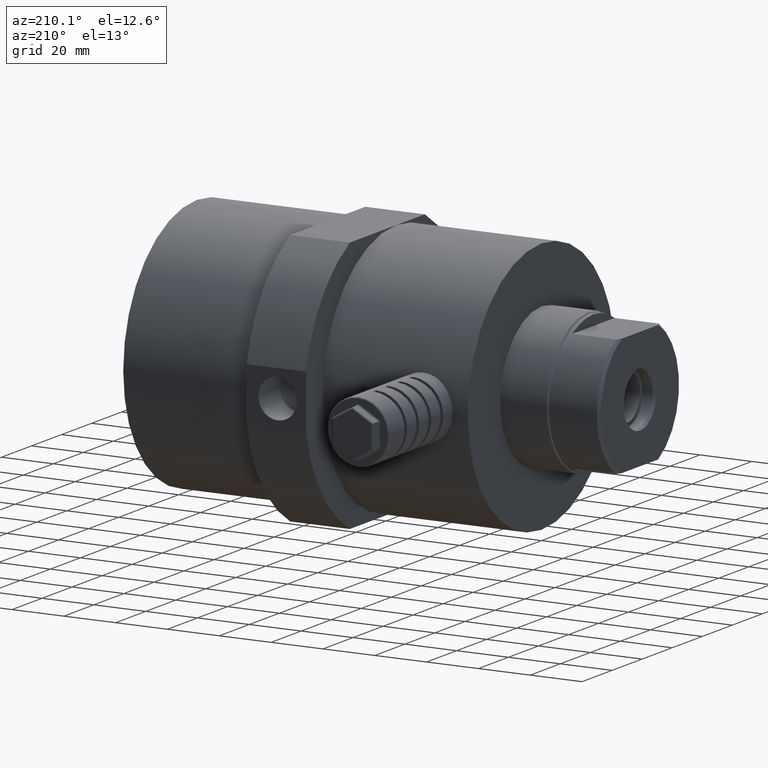
[diagram: clean part render]
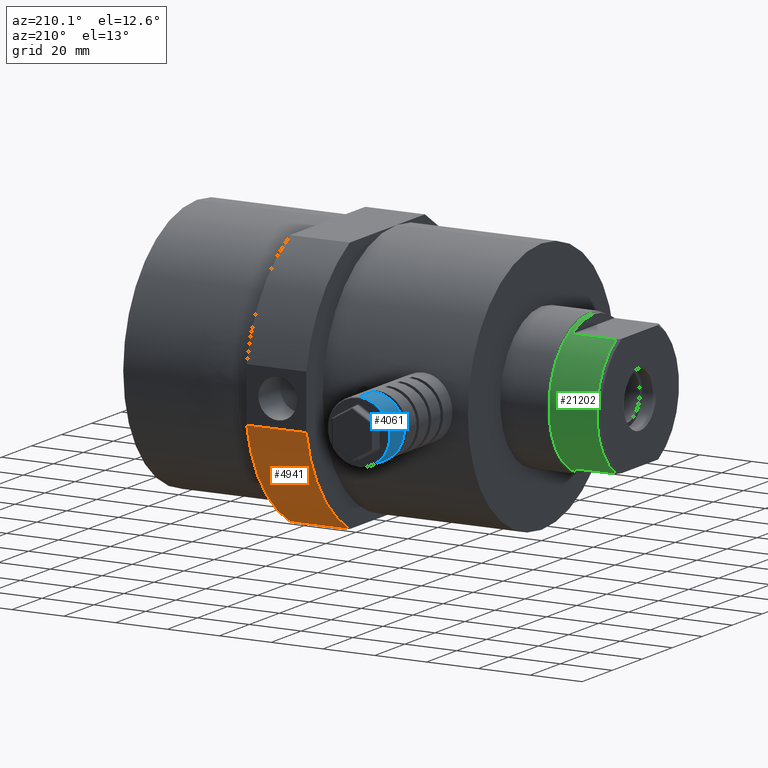
[diagram: same view with three faces highlighted in distinct colors, each labeled with its STEP entity id]
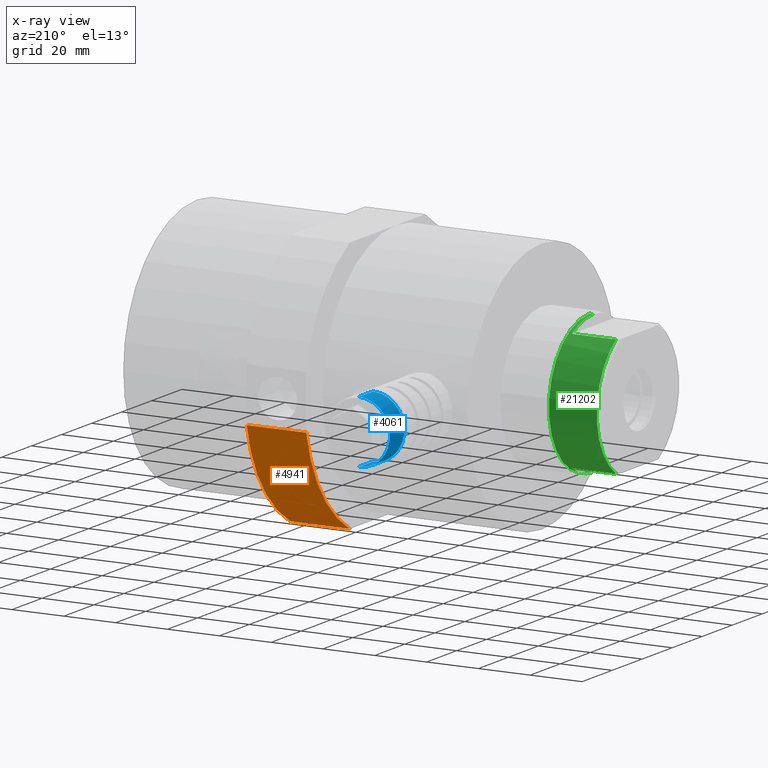
[diagram: x-ray of the same camera — body ghosted, the three highlighted faces saturated]
A machine part, auxiliary view with three faces highlighted in distinct colors.
The next image is the same camera in x-ray (body ghosted, the three faces saturated) — at least one of them is partly hidden behind the body in this view.
Their STEP definitions:

[orange] entity #4941 — the highlighted cylindrical surface (partial cylindrical patch) has radius 55 mm, axis along (-1, 0, 0).
#126 = CARTESIAN_POINT ( 'NONE',  ( 56.00000000000000000, 60.00000000000000000, -10.44030650891056000 ) ) ;
#408 = ORIENTED_EDGE ( 'NONE', *, *, #3626, .F. ) ;
#638 = CARTESIAN_POINT ( 'NONE',  ( 79.00000000000000000, 30.97999199359360000, -49.00000000000000000 ) ) ;
#736 = CARTESIAN_POINT ( 'NONE',  ( 0.0000000000000000000, 60.00000000000000000, -10.44030650891056000 ) ) ;
#1926 = CIRCLE ( 'NONE', #14476, 55.00000000000000000 ) ;
#1981 = DIRECTION ( 'NONE',  ( 0.0000000000000000000, 0.0000000000000000000, -1.000000000000000000 ) ) ;
#2153 = FACE_OUTER_BOUND ( 'NONE', #3464, .T. ) ;
#3439 = VECTOR ( 'NONE', #21181, 1000.000000000000000 ) ;
#3464 = EDGE_LOOP ( 'NONE', ( #5284, #5040, #408, #7193 ) ) ;
#3626 = EDGE_CURVE ( 'NONE', #6372, #9669, #15256, .T. ) ;
#3713 = LINE ( 'NONE', #736, #3439 ) ;
#4941 = ADVANCED_FACE ( 'NONE', ( #2153 ), #21964, .T. ) ;
#5040 = ORIENTED_EDGE ( 'NONE', *, *, #17989, .T. ) ;
#5284 = ORIENTED_EDGE ( 'NONE', *, *, #10808, .F. ) ;
#6360 = DIRECTION ( 'NONE',  ( 0.0000000000000000000, 0.0000000000000000000, 1.000000000000000000 ) ) ;
#6372 = VERTEX_POINT ( 'NONE', #126 ) ;
#7193 = ORIENTED_EDGE ( 'NONE', *, *, #21549, .T. ) ;
#9669 = VERTEX_POINT ( 'NONE', #11287 ) ;
#10808 = EDGE_CURVE ( 'NONE', #18360, #12382, #1926, .T. ) ;
#10832 = DIRECTION ( 'NONE',  ( -1.000000000000000000, 0.0000000000000000000, 0.0000000000000000000 ) ) ;
#11287 = CARTESIAN_POINT ( 'NONE',  ( 56.00000000000000000, 30.97999199359360000, -49.00000000000000000 ) ) ;
#11533 = CARTESIAN_POINT ( 'NONE',  ( 56.00000000000000000, 6.000000000000000000, 0.0000000000000000000 ) ) ;
#12354 = DIRECTION ( 'NONE',  ( 0.0000000000000000000, 0.0000000000000000000, 1.000000000000000000 ) ) ;
#12382 = VERTEX_POINT ( 'NONE', #17745 ) ;
#12397 = DIRECTION ( 'NONE',  ( 1.000000000000000000, 0.0000000000000000000, 0.0000000000000000000 ) ) ;
#12928 = AXIS2_PLACEMENT_3D ( 'NONE', #16081, #10832, #12354 ) ;
#13567 = LINE ( 'NONE', #19501, #21980 ) ;
#14476 = AXIS2_PLACEMENT_3D ( 'NONE', #20918, #12397, #1981 ) ;
#15256 = CIRCLE ( 'NONE', #16270, 55.00000000000000000 ) ;
#16081 = CARTESIAN_POINT ( 'NONE',  ( 0.0000000000000000000, 6.000000000000000000, 0.0000000000000000000 ) ) ;
#16270 = AXIS2_PLACEMENT_3D ( 'NONE', #11533, #18632, #6360 ) ;
#17745 = CARTESIAN_POINT ( 'NONE',  ( 79.00000000000000000, 60.00000000000000000, -10.44030650891056000 ) ) ;
#17989 = EDGE_CURVE ( 'NONE', #18360, #9669, #13567, .T. ) ;
#18360 = VERTEX_POINT ( 'NONE', #638 ) ;
#18632 = DIRECTION ( 'NONE',  ( -1.000000000000000000, 0.0000000000000000000, 0.0000000000000000000 ) ) ;
#19501 = CARTESIAN_POINT ( 'NONE',  ( 0.0000000000000000000, 30.97999199359360000, -49.00000000000000000 ) ) ;
#19576 = DIRECTION ( 'NONE',  ( -1.000000000000000000, 0.0000000000000000000, 0.0000000000000000000 ) ) ;
#20918 = CARTESIAN_POINT ( 'NONE',  ( 79.00000000000000000, 6.000000000000000000, 0.0000000000000000000 ) ) ;
#21181 = DIRECTION ( 'NONE',  ( 1.000000000000000000, -0.0000000000000000000, -0.0000000000000000000 ) ) ;
#21549 = EDGE_CURVE ( 'NONE', #6372, #12382, #3713, .T. ) ;
#21964 = CYLINDRICAL_SURFACE ( 'NONE', #12928, 55.00000000000000000 ) ;
#21980 = VECTOR ( 'NONE', #19576, 1000.000000000000000 ) ;

[blue] entity #4061 — the highlighted cylindrical surface (edge-blend (fillet) strip) has radius 12 mm, axis along (0, -1, 0).
#474 = VERTEX_POINT ( 'NONE', #9780 ) ;
#802 = AXIS2_PLACEMENT_3D ( 'NONE', #3365, #4877, #22233 ) ;
#929 = CARTESIAN_POINT ( 'NONE',  ( 18.00000000000000000, 91.00000000000000000, -1.172835700086194200E-016 ) ) ;
#953 = EDGE_CURVE ( 'NONE', #1471, #474, #1991, .T. ) ;
#1471 = VERTEX_POINT ( 'NONE', #7424 ) ;
#1991 = LINE ( 'NONE', #15520, #15317 ) ;
#2418 = ORIENTED_EDGE ( 'NONE', *, *, #18496, .T. ) ;
#2534 = CARTESIAN_POINT ( 'NONE',  ( 18.00000000000000000, 90.50000000000000000, -12.00000000000000000 ) ) ;
#3210 = CIRCLE ( 'NONE', #802, 12.00000000000000000 ) ;
#3365 = CARTESIAN_POINT ( 'NONE',  ( 18.00000000000000000, 81.00000000000000000, -1.172835700086194200E-016 ) ) ;
#3391 = ORIENTED_EDGE ( 'NONE', *, *, #953, .F. ) ;
#4061 = ADVANCED_FACE ( 'NONE', ( #17405 ), #19810, .T. ) ;
#4679 = EDGE_LOOP ( 'NONE', ( #2418, #7249, #15766, #3391 ) ) ;
#4877 = DIRECTION ( 'NONE',  ( 0.0000000000000000000, 1.000000000000000000, 0.0000000000000000000 ) ) ;
#7249 = ORIENTED_EDGE ( 'NONE', *, *, #22318, .T. ) ;
#7424 = CARTESIAN_POINT ( 'NONE',  ( 18.00000000000000000, 90.50000000000000000, 12.00000000000000000 ) ) ;
#9780 = CARTESIAN_POINT ( 'NONE',  ( 18.00000000000000000, 81.00000000000000000, 12.00000000000000000 ) ) ;
#10101 = CARTESIAN_POINT ( 'NONE',  ( 18.00000000000000000, 90.50000000000000000, -1.172835700086194200E-016 ) ) ;
#10168 = DIRECTION ( 'NONE',  ( -0.0000000000000000000, -1.000000000000000000, -0.0000000000000000000 ) ) ;
#10346 = DIRECTION ( 'NONE',  ( 0.0000000000000000000, -1.000000000000000000, 0.0000000000000000000 ) ) ;
#11593 = AXIS2_PLACEMENT_3D ( 'NONE', #10101, #10168, #17087 ) ;
#11660 = CIRCLE ( 'NONE', #11593, 12.00000000000000000 ) ;
#11833 = DIRECTION ( 'NONE',  ( 0.0000000000000000000, -1.000000000000000000, 0.0000000000000000000 ) ) ;
#13000 = EDGE_CURVE ( 'NONE', #21054, #474, #3210, .T. ) ;
#13294 = DIRECTION ( 'NONE',  ( 0.0000000000000000000, 0.0000000000000000000, 1.000000000000000000 ) ) ;
#14538 = AXIS2_PLACEMENT_3D ( 'NONE', #929, #11833, #13294 ) ;
#14861 = VECTOR ( 'NONE', #21177, 1000.000000000000000 ) ;
#15317 = VECTOR ( 'NONE', #10346, 1000.000000000000000 ) ;
#15359 = CARTESIAN_POINT ( 'NONE',  ( 18.00000000000000000, 81.00000000000000000, -12.00000000000000000 ) ) ;
#15520 = CARTESIAN_POINT ( 'NONE',  ( 18.00000000000000000, 91.00000000000000000, 12.00000000000000000 ) ) ;
#15766 = ORIENTED_EDGE ( 'NONE', *, *, #13000, .T. ) ;
#17020 = LINE ( 'NONE', #17585, #14861 ) ;
#17087 = DIRECTION ( 'NONE',  ( 0.0000000000000000000, 0.0000000000000000000, -1.000000000000000000 ) ) ;
#17405 = FACE_OUTER_BOUND ( 'NONE', #4679, .T. ) ;
#17585 = CARTESIAN_POINT ( 'NONE',  ( 18.00000000000000000, 91.00000000000000000, -12.00000000000000000 ) ) ;
#17956 = VERTEX_POINT ( 'NONE', #2534 ) ;
#18496 = EDGE_CURVE ( 'NONE', #1471, #17956, #11660, .T. ) ;
#19810 = CYLINDRICAL_SURFACE ( 'NONE', #14538, 12.00000000000000000 ) ;
#21054 = VERTEX_POINT ( 'NONE', #15359 ) ;
#21177 = DIRECTION ( 'NONE',  ( 0.0000000000000000000, -1.000000000000000000, 0.0000000000000000000 ) ) ;
#22233 = DIRECTION ( 'NONE',  ( 0.0000000000000000000, 0.0000000000000000000, -1.000000000000000000 ) ) ;
#22318 = EDGE_CURVE ( 'NONE', #17956, #21054, #17020, .T. ) ;

[green] entity #21202 — the highlighted cylindrical surface (partial cylindrical patch) has radius 27 mm, axis along (1, 0, 0).
#370 = CIRCLE ( 'NONE', #15574, 27.00000000000000000 ) ;
#1048 = LINE ( 'NONE', #18009, #20542 ) ;
#1185 = CARTESIAN_POINT ( 'NONE',  ( -20.00000000000000000, 0.0000000000000000000, 0.0000000000000000000 ) ) ;
#1213 = VERTEX_POINT ( 'NONE', #19320 ) ;
#1274 = VERTEX_POINT ( 'NONE', #11661 ) ;
#1388 = DIRECTION ( 'NONE',  ( 1.000000000000000000, 0.0000000000000000000, 0.0000000000000000000 ) ) ;
#1414 = ORIENTED_EDGE ( 'NONE', *, *, #1932, .F. ) ;
#1802 = DIRECTION ( 'NONE',  ( 0.0000000000000000000, 8.881784197001252300E-016, 1.000000000000000000 ) ) ;
#1932 = EDGE_CURVE ( 'NONE', #10277, #3871, #21501, .T. ) ;
#2603 = DIRECTION ( 'NONE',  ( 0.0000000000000000000, 0.0000000000000000000, -1.000000000000000000 ) ) ;
#2823 = CARTESIAN_POINT ( 'NONE',  ( -20.00000000000000000, 3.306546357697853700E-015, 27.00000000000000000 ) ) ;
#3241 = EDGE_CURVE ( 'NONE', #1213, #18416, #13632, .T. ) ;
#3871 = VERTEX_POINT ( 'NONE', #13236 ) ;
#4167 = EDGE_CURVE ( 'NONE', #4328, #15917, #20592, .T. ) ;
#4328 = VERTEX_POINT ( 'NONE', #8053 ) ;
#5192 = EDGE_LOOP ( 'NONE', ( #13208, #20591, #8059, #1414, #19821, #19653, #5368, #14193 ) ) ;
#5206 = VECTOR ( 'NONE', #12780, 1000.000000000000000 ) ;
#5368 = ORIENTED_EDGE ( 'NONE', *, *, #7873, .T. ) ;
#5396 = DIRECTION ( 'NONE',  ( 0.0000000000000000000, 0.0000000000000000000, 1.000000000000000000 ) ) ;
#6035 = EDGE_CURVE ( 'NONE', #1274, #3871, #13209, .T. ) ;
#6337 = DIRECTION ( 'NONE',  ( 0.0000000000000000000, 0.0000000000000000000, -1.000000000000000000 ) ) ;
#7873 = EDGE_CURVE ( 'NONE', #4328, #15264, #370, .T. ) ;
#8053 = CARTESIAN_POINT ( 'NONE',  ( -37.00000000000000000, 14.14213562373091900, -23.00000000000000000 ) ) ;
#8059 = ORIENTED_EDGE ( 'NONE', *, *, #6035, .T. ) ;
#8490 = EDGE_CURVE ( 'NONE', #15917, #10277, #17477, .T. ) ;
#9927 = DIRECTION ( 'NONE',  ( 1.000000000000000000, 0.0000000000000000000, 0.0000000000000000000 ) ) ;
#10031 = DIRECTION ( 'NONE',  ( -1.000000000000000000, -0.0000000000000000000, -0.0000000000000000000 ) ) ;
#10060 = DIRECTION ( 'NONE',  ( 1.000000000000000000, 0.0000000000000000000, 0.0000000000000000000 ) ) ;
#10277 = VERTEX_POINT ( 'NONE', #18883 ) ;
#10487 = EDGE_CURVE ( 'NONE', #18416, #1274, #10907, .T. ) ;
#10725 = DIRECTION ( 'NONE',  ( -1.000000000000000000, 0.0000000000000000000, 0.0000000000000000000 ) ) ;
#10907 = LINE ( 'NONE', #13977, #5206 ) ;
#11409 = CARTESIAN_POINT ( 'NONE',  ( -18.50000000000000000, 0.0000000000000000000, 0.0000000000000000000 ) ) ;
#11661 = CARTESIAN_POINT ( 'NONE',  ( -18.50000000000000000, 3.306546357697853700E-015, 27.00000000000000000 ) ) ;
#12420 = CYLINDRICAL_SURFACE ( 'NONE', #21639, 27.00000000000000000 ) ;
#12551 = CARTESIAN_POINT ( 'NONE',  ( -20.00000000000000000, 0.0000000000000000000, 0.0000000000000000000 ) ) ;
#12656 = AXIS2_PLACEMENT_3D ( 'NONE', #11409, #10031, #16808 ) ;
#12780 = DIRECTION ( 'NONE',  ( 1.000000000000000000, 0.0000000000000000000, 0.0000000000000000000 ) ) ;
#13015 = CARTESIAN_POINT ( 'NONE',  ( -20.00000000000000000, 14.14213562373089900, -23.00000000000000000 ) ) ;
#13208 = ORIENTED_EDGE ( 'NONE', *, *, #3241, .T. ) ;
#13209 = CIRCLE ( 'NONE', #12656, 27.00000000000000000 ) ;
#13236 = CARTESIAN_POINT ( 'NONE',  ( -18.50000000000000000, 0.0000000000000000000, -27.00000000000000000 ) ) ;
#13632 = CIRCLE ( 'NONE', #22035, 27.00000000000000000 ) ;
#13886 = CARTESIAN_POINT ( 'NONE',  ( 17.00000000000000000, 14.14213562373089900, -23.00000000000000000 ) ) ;
#13977 = CARTESIAN_POINT ( 'NONE',  ( 17.00000000000000000, 3.306546357697853700E-015, 27.00000000000000000 ) ) ;
#14193 = ORIENTED_EDGE ( 'NONE', *, *, #20302, .T. ) ;
#14374 = DIRECTION ( 'NONE',  ( 1.000000000000000000, 0.0000000000000000000, 0.0000000000000000000 ) ) ;
#15264 = VERTEX_POINT ( 'NONE', #18449 ) ;
#15574 = AXIS2_PLACEMENT_3D ( 'NONE', #17228, #20650, #1802 ) ;
#15917 = VERTEX_POINT ( 'NONE', #13015 ) ;
#16808 = DIRECTION ( 'NONE',  ( 0.0000000000000000000, 0.0000000000000000000, -1.000000000000000000 ) ) ;
#17228 = CARTESIAN_POINT ( 'NONE',  ( -37.00000000000000000, 0.0000000000000000000, 0.0000000000000000000 ) ) ;
#17267 = CARTESIAN_POINT ( 'NONE',  ( 17.00000000000000000, 0.0000000000000000000, -27.00000000000000000 ) ) ;
#17477 = CIRCLE ( 'NONE', #22508, 27.00000000000000000 ) ;
#18009 = CARTESIAN_POINT ( 'NONE',  ( 17.00000000000000000, 14.14213562373089900, 23.00000000000000000 ) ) ;
#18015 = VECTOR ( 'NONE', #10060, 1000.000000000000000 ) ;
#18416 = VERTEX_POINT ( 'NONE', #2823 ) ;
#18449 = CARTESIAN_POINT ( 'NONE',  ( -37.00000000000000000, 14.14213562373091900, 23.00000000000000000 ) ) ;
#18883 = CARTESIAN_POINT ( 'NONE',  ( -20.00000000000000000, 0.0000000000000000000, -27.00000000000000000 ) ) ;
#18963 = CARTESIAN_POINT ( 'NONE',  ( 17.00000000000000000, 0.0000000000000000000, 0.0000000000000000000 ) ) ;
#19320 = CARTESIAN_POINT ( 'NONE',  ( -20.00000000000000000, 14.14213562373089900, 23.00000000000000000 ) ) ;
#19329 = DIRECTION ( 'NONE',  ( 1.000000000000000000, 0.0000000000000000000, 0.0000000000000000000 ) ) ;
#19653 = ORIENTED_EDGE ( 'NONE', *, *, #4167, .F. ) ;
#19821 = ORIENTED_EDGE ( 'NONE', *, *, #8490, .F. ) ;
#20302 = EDGE_CURVE ( 'NONE', #15264, #1213, #1048, .T. ) ;
#20303 = VECTOR ( 'NONE', #19329, 1000.000000000000000 ) ;
#20542 = VECTOR ( 'NONE', #9927, 1000.000000000000000 ) ;
#20591 = ORIENTED_EDGE ( 'NONE', *, *, #10487, .T. ) ;
#20592 = LINE ( 'NONE', #13886, #20303 ) ;
#20650 = DIRECTION ( 'NONE',  ( 1.000000000000000000, -0.0000000000000000000, -0.0000000000000000000 ) ) ;
#21202 = ADVANCED_FACE ( 'NONE', ( #22159 ), #12420, .T. ) ;
#21501 = LINE ( 'NONE', #17267, #18015 ) ;
#21639 = AXIS2_PLACEMENT_3D ( 'NONE', #18963, #14374, #2603 ) ;
#22035 = AXIS2_PLACEMENT_3D ( 'NONE', #1185, #1388, #6337 ) ;
#22159 = FACE_OUTER_BOUND ( 'NONE', #5192, .T. ) ;
#22508 = AXIS2_PLACEMENT_3D ( 'NONE', #12551, #10725, #5396 ) ;